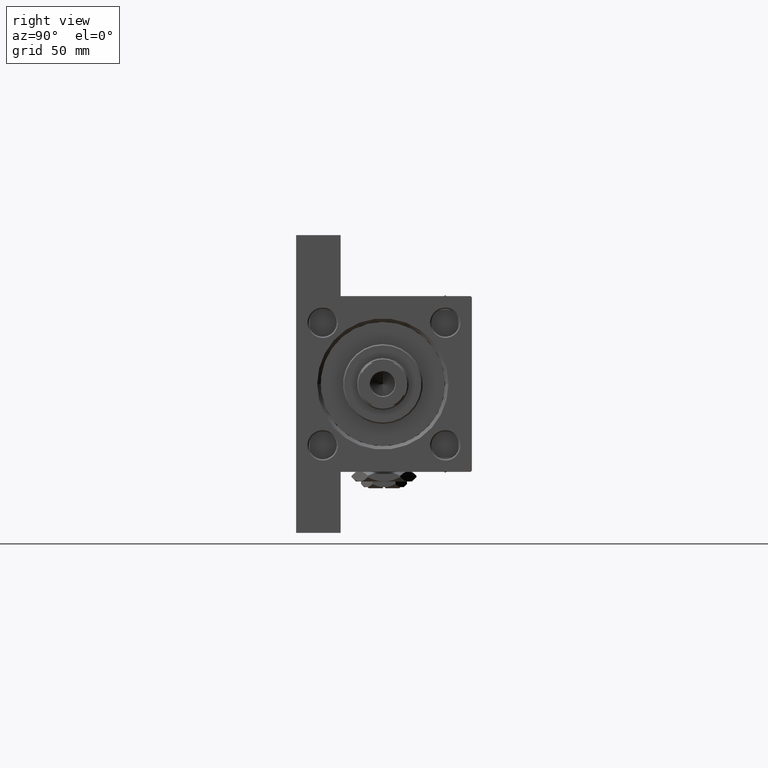
[diagram: clean part render]
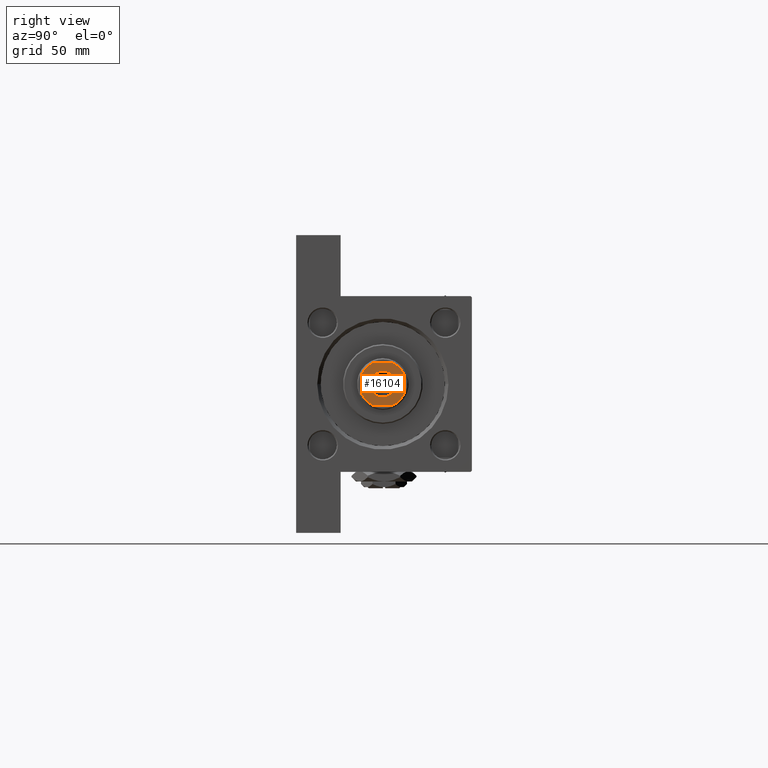
[diagram: same view with one face highlighted and labeled with its STEP entity id]
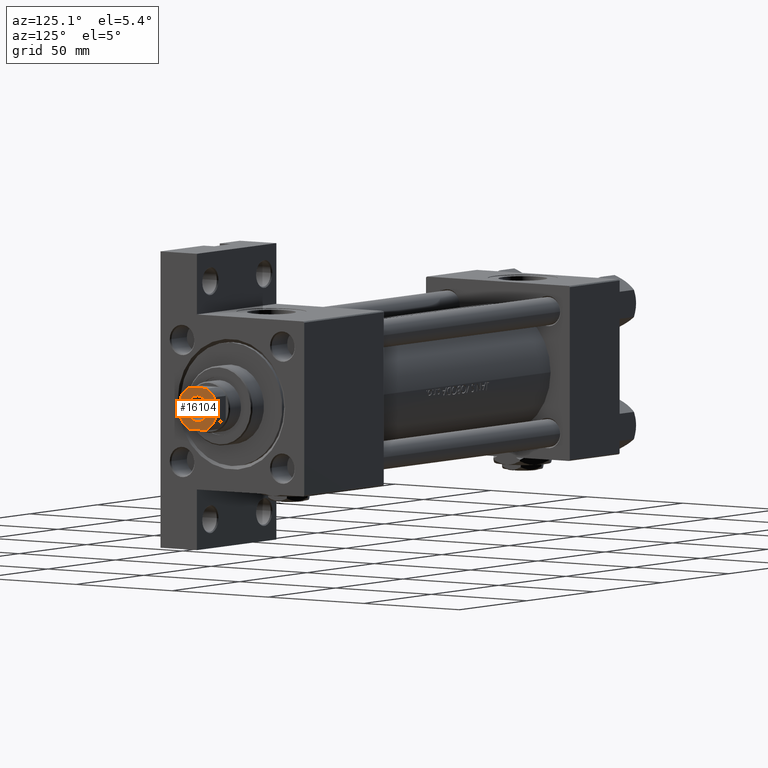
[diagram: same view with one face highlighted and labeled with its STEP entity id]
A machine part, right view. The second image highlights one B-rep face of the part: STEP entity #16104.
A second angle (auxiliary view) of the same face is appended — the face is thin or edge-on in the first view.
In plain terms, the highlighted planar face has unit normal (1, 0, 0).
Its self-contained STEP definition (entity closure, byte-faithful):
#356 = VERTEX_POINT ( 'NONE', #33461 ) ;
#2482 = VECTOR ( 'NONE', #25245, 1000.000000000000000 ) ;
#3042 = DIRECTION ( 'NONE',  ( 1.000000000000000000, 0.000000000000000000, 0.000000000000000000 ) ) ;
#3164 = DIRECTION ( 'NONE',  ( -0.000000000000000000, 0.000000000000000000, 1.000000000000000000 ) ) ;
#3276 = CIRCLE ( 'NONE', #38551, 9.999999999999984013 ) ;
#3919 = VECTOR ( 'NONE', #14405, 1000.000000000000000 ) ;
#4031 = DIRECTION ( 'NONE',  ( -0.000000000000000000, 0.000000000000000000, 1.000000000000000000 ) ) ;
#4209 = VERTEX_POINT ( 'NONE', #43227 ) ;
#4312 = DIRECTION ( 'NONE',  ( 1.000000000000000000, 0.000000000000000000, 0.000000000000000000 ) ) ;
#4617 = EDGE_CURVE ( 'NONE', #41712, #27370, #15210, .T. ) ;
#5360 = DIRECTION ( 'NONE',  ( -0.000000000000000000, 0.000000000000000000, 1.000000000000000000 ) ) ;
#5903 = CARTESIAN_POINT ( 'NONE',  ( 0.000000000000000000, 0.000000000000000000, 222.0000000000000000 ) ) ;
#6388 = VERTEX_POINT ( 'NONE', #32453 ) ;
#6809 = EDGE_CURVE ( 'NONE', #29803, #31765, #3276, .T. ) ;
#7586 = CARTESIAN_POINT ( 'NONE',  ( 0.000000000000000000, 0.000000000000000000, 222.0000000000000000 ) ) ;
#7969 = EDGE_CURVE ( 'NONE', #31765, #4209, #19267, .T. ) ;
#8472 = ORIENTED_EDGE ( 'NONE', *, *, #7969, .T. ) ;
#9421 = DIRECTION ( 'NONE',  ( 0.000000000000000000, -0.000000000000000000, -1.000000000000000000 ) ) ;
#9896 = CARTESIAN_POINT ( 'NONE',  ( -9.000000000000003553, 8.999999999999998224, 222.0000000000000000 ) ) ;
#9983 = DIRECTION ( 'NONE',  ( 1.000000000000000000, 0.000000000000000000, 0.000000000000000000 ) ) ;
#10453 = ORIENTED_EDGE ( 'NONE', *, *, #4617, .T. ) ;
#10532 = ORIENTED_EDGE ( 'NONE', *, *, #27620, .T. ) ;
#10838 = CARTESIAN_POINT ( 'NONE',  ( -9.000000000000003553, 4.358898943540634008, 222.0000000000000000 ) ) ;
#10996 = CARTESIAN_POINT ( 'NONE',  ( -9.000000000000001776, -9.000000000000001776, 222.0000000000000000 ) ) ;
#11405 = ORIENTED_EDGE ( 'NONE', *, *, #25386, .T. ) ;
#13326 = AXIS2_PLACEMENT_3D ( 'NONE', #46013, #23176, #37998 ) ;
#13553 = EDGE_CURVE ( 'NONE', #4209, #6388, #27838, .T. ) ;
#13797 = ORIENTED_EDGE ( 'NONE', *, *, #28669, .T. ) ;
#14405 = DIRECTION ( 'NONE',  ( -1.927470528863119049E-16, 1.000000000000000000, -0.000000000000000000 ) ) ;
#14996 = DIRECTION ( 'NONE',  ( 1.000000000000000000, 0.000000000000000000, 0.000000000000000000 ) ) ;
#15210 = CIRCLE ( 'NONE', #26482, 10.00000000000003375 ) ;
#15867 = AXIS2_PLACEMENT_3D ( 'NONE', #48873, #3164, #29817 ) ;
#16104 = ADVANCED_FACE ( 'NONE', ( #45231, #30426 ), #30179, .T. ) ;
#17269 = AXIS2_PLACEMENT_3D ( 'NONE', #41223, #4031, #3042 ) ;
#17622 = DIRECTION ( 'NONE',  ( 1.000000000000000000, 0.000000000000000000, 0.000000000000000000 ) ) ;
#18606 = VERTEX_POINT ( 'NONE', #38908 ) ;
#19061 = CIRCLE ( 'NONE', #15867, 9.999999999999984013 ) ;
#19267 = LINE ( 'NONE', #10996, #42595 ) ;
#20122 = ORIENTED_EDGE ( 'NONE', *, *, #6809, .T. ) ;
#21335 = EDGE_CURVE ( 'NONE', #27370, #356, #34133, .T. ) ;
#21461 = DIRECTION ( 'NONE',  ( 1.000000000000000000, 0.000000000000000000, 0.000000000000000000 ) ) ;
#21546 = CARTESIAN_POINT ( 'NONE',  ( 0.000000000000000000, 0.000000000000000000, 222.0000000000000000 ) ) ;
#21657 = CARTESIAN_POINT ( 'NONE',  ( 8.999999999999998224, 4.358898943540755688, 222.0000000000000000 ) ) ;
#22085 = DIRECTION ( 'NONE',  ( -1.000000000000000000, -0.000000000000000000, -0.000000000000000000 ) ) ;
#22183 = CIRCLE ( 'NONE', #13326, 5.550000000000027356 ) ;
#23176 = DIRECTION ( 'NONE',  ( 0.000000000000000000, -0.000000000000000000, -1.000000000000000000 ) ) ;
#24951 = AXIS2_PLACEMENT_3D ( 'NONE', #5903, #9421, #21461 ) ;
#25245 = DIRECTION ( 'NONE',  ( 9.637352644315595243E-17, -1.000000000000000000, 0.000000000000000000 ) ) ;
#25386 = EDGE_CURVE ( 'NONE', #356, #48916, #19061, .T. ) ;
#26482 = AXIS2_PLACEMENT_3D ( 'NONE', #21546, #37621, #9983 ) ;
#27163 = ORIENTED_EDGE ( 'NONE', *, *, #21335, .T. ) ;
#27370 = VERTEX_POINT ( 'NONE', #47125 ) ;
#27620 = EDGE_CURVE ( 'NONE', #6388, #41712, #45084, .T. ) ;
#27838 = CIRCLE ( 'NONE', #47842, 9.999999999999984013 ) ;
#28669 = EDGE_CURVE ( 'NONE', #31945, #18606, #22183, .T. ) ;
#29482 = EDGE_LOOP ( 'NONE', ( #10532, #10453, #27163, #11405, #33079, #20122, #8472, #44718 ) ) ;
#29607 = EDGE_LOOP ( 'NONE', ( #13797, #38970 ) ) ;
#29803 = VERTEX_POINT ( 'NONE', #43608 ) ;
#29817 = DIRECTION ( 'NONE',  ( 1.000000000000000000, 0.000000000000000000, 0.000000000000000000 ) ) ;
#30179 = PLANE ( 'NONE',  #17269 ) ;
#30426 = FACE_OUTER_BOUND ( 'NONE', #29482, .T. ) ;
#31765 = VERTEX_POINT ( 'NONE', #33764 ) ;
#31945 = VERTEX_POINT ( 'NONE', #43087 ) ;
#32246 = CARTESIAN_POINT ( 'NONE',  ( 0.000000000000000000, 0.000000000000000000, 222.0000000000000000 ) ) ;
#32453 = CARTESIAN_POINT ( 'NONE',  ( 8.999999999999998224, -4.358898943540641113, 222.0000000000000000 ) ) ;
#32780 = LINE ( 'NONE', #9896, #2482 ) ;
#33079 = ORIENTED_EDGE ( 'NONE', *, *, #38604, .T. ) ;
#33461 = CARTESIAN_POINT ( 'NONE',  ( -4.358898943540642001, 8.999999999999998224, 222.0000000000000000 ) ) ;
#33764 = CARTESIAN_POINT ( 'NONE',  ( -4.358898943540635784, -9.000000000000001776, 222.0000000000000000 ) ) ;
#34133 = LINE ( 'NONE', #45424, #42349 ) ;
#35216 = DIRECTION ( 'NONE',  ( -0.000000000000000000, 0.000000000000000000, 1.000000000000000000 ) ) ;
#37621 = DIRECTION ( 'NONE',  ( -0.000000000000000000, 0.000000000000000000, 1.000000000000000000 ) ) ;
#37998 = DIRECTION ( 'NONE',  ( 1.000000000000000000, 0.000000000000000000, 0.000000000000000000 ) ) ;
#38551 = AXIS2_PLACEMENT_3D ( 'NONE', #32246, #5360, #17622 ) ;
#38604 = EDGE_CURVE ( 'NONE', #48916, #29803, #32780, .T. ) ;
#38908 = CARTESIAN_POINT ( 'NONE',  ( -5.550000000000027356, 6.796789735267842335E-16, 222.0000000000000000 ) ) ;
#38970 = ORIENTED_EDGE ( 'NONE', *, *, #39506, .T. ) ;
#39506 = EDGE_CURVE ( 'NONE', #18606, #31945, #41786, .T. ) ;
#41223 = CARTESIAN_POINT ( 'NONE',  ( 0.000000000000000000, 0.000000000000000000, 222.0000000000000000 ) ) ;
#41712 = VERTEX_POINT ( 'NONE', #21657 ) ;
#41786 = CIRCLE ( 'NONE', #24951, 5.550000000000027356 ) ;
#42349 = VECTOR ( 'NONE', #22085, 1000.000000000000000 ) ;
#42595 = VECTOR ( 'NONE', #14996, 1000.000000000000000 ) ;
#43087 = CARTESIAN_POINT ( 'NONE',  ( 5.550000000000027356, 0.000000000000000000, 222.0000000000000000 ) ) ;
#43227 = CARTESIAN_POINT ( 'NONE',  ( 4.358898943540635784, -9.000000000000001776, 222.0000000000000000 ) ) ;
#43608 = CARTESIAN_POINT ( 'NONE',  ( -9.000000000000003553, -4.358898943540634008, 222.0000000000000000 ) ) ;
#44718 = ORIENTED_EDGE ( 'NONE', *, *, #13553, .T. ) ;
#45084 = LINE ( 'NONE', #49333, #3919 ) ;
#45231 = FACE_BOUND ( 'NONE', #29607, .T. ) ;
#45424 = CARTESIAN_POINT ( 'NONE',  ( -9.000000000000003553, 8.999999999999998224, 222.0000000000000000 ) ) ;
#46013 = CARTESIAN_POINT ( 'NONE',  ( 0.000000000000000000, 0.000000000000000000, 222.0000000000000000 ) ) ;
#47125 = CARTESIAN_POINT ( 'NONE',  ( 4.358898943540753912, 8.999999999999998224, 222.0000000000000000 ) ) ;
#47842 = AXIS2_PLACEMENT_3D ( 'NONE', #7586, #35216, #4312 ) ;
#48873 = CARTESIAN_POINT ( 'NONE',  ( 0.000000000000000000, 0.000000000000000000, 222.0000000000000000 ) ) ;
#48916 = VERTEX_POINT ( 'NONE', #10838 ) ;
#49333 = CARTESIAN_POINT ( 'NONE',  ( 8.999999999999996447, 8.999999999999998224, 222.0000000000000000 ) ) ;